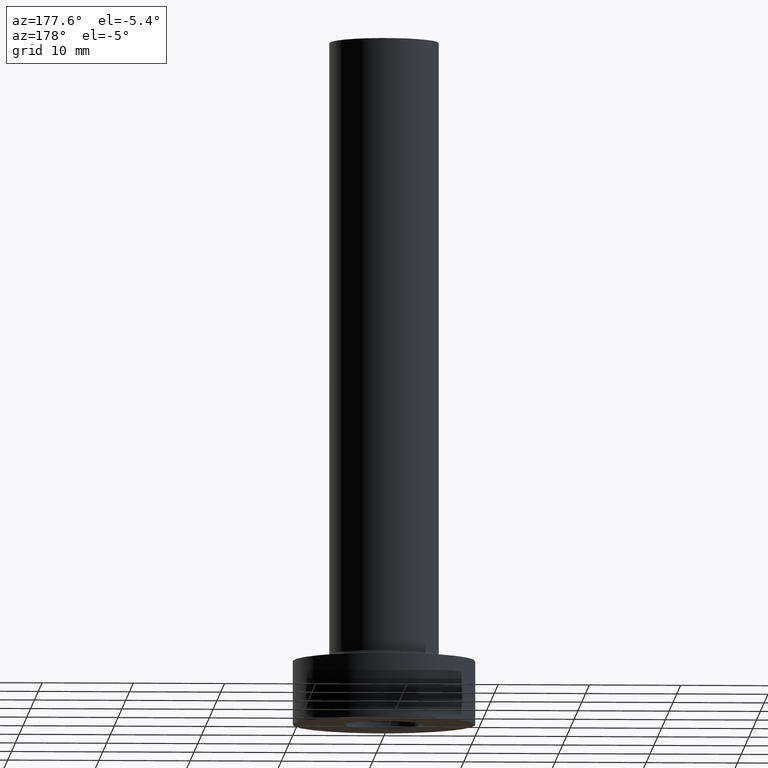
[diagram: clean part render]
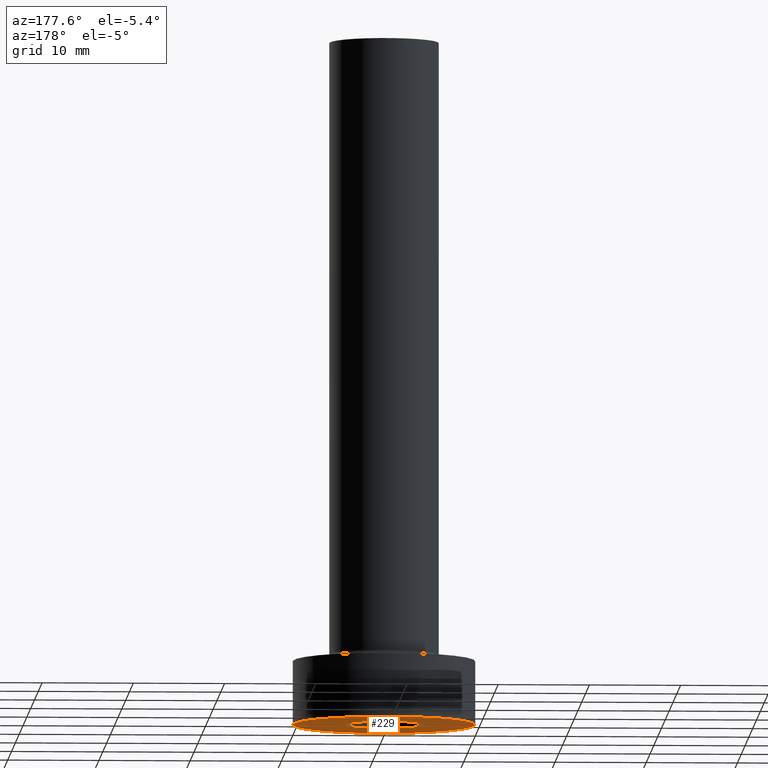
[diagram: same view with one face highlighted and labeled with its STEP entity id]
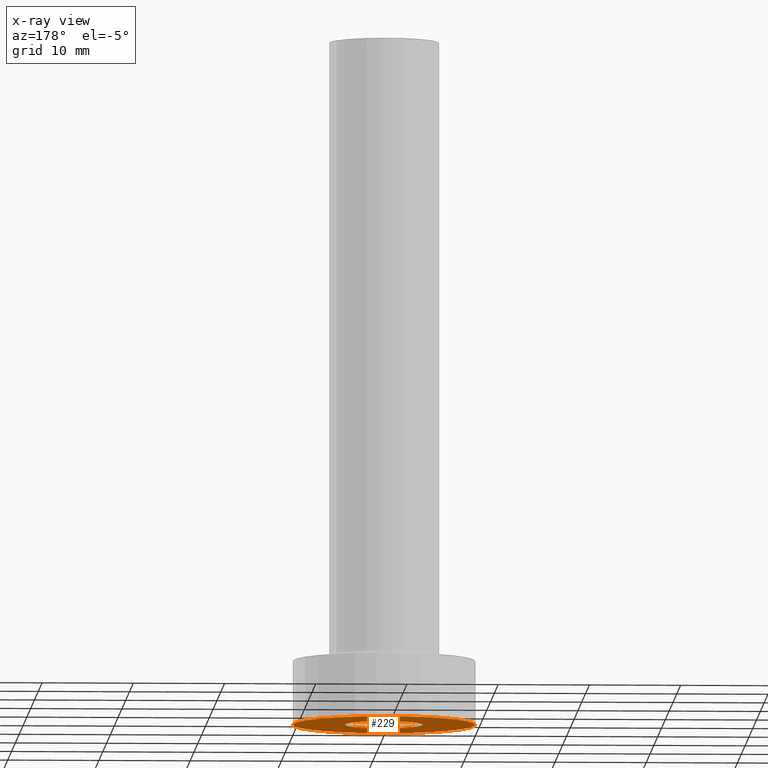
[diagram: x-ray of the same camera — body ghosted, the highlighted face saturated]
A machine part, auxiliary view. The second image highlights one B-rep face of the part: STEP entity #229.
The next image is the same camera in x-ray: the body ghosted, the highlighted face saturated — about 0% of this face is hidden behind the body in this view.
In plain terms, the highlighted planar face has unit normal (0, 0, 1).
Its self-contained STEP definition (entity closure, byte-faithful):
#9 = CIRCLE ( 'NONE', #89, 4.250000000000000000 ) ;
#27 = CARTESIAN_POINT ( 'NONE',  ( 4.250000000000000000, 5.204748896376249713E-16, 0.000000000000000000 ) ) ;
#37 = DIRECTION ( 'NONE',  ( -0.000000000000000000, -0.000000000000000000, -1.000000000000000000 ) ) ;
#39 = EDGE_CURVE ( 'NONE', #245, #116, #434, .T. ) ;
#54 = DIRECTION ( 'NONE',  ( 0.000000000000000000, 0.000000000000000000, 1.000000000000000000 ) ) ;
#62 = DIRECTION ( 'NONE',  ( -0.000000000000000000, -0.000000000000000000, -1.000000000000000000 ) ) ;
#69 = CARTESIAN_POINT ( 'NONE',  ( 0.000000000000000000, 0.000000000000000000, 0.000000000000000000 ) ) ;
#70 = ORIENTED_EDGE ( 'NONE', *, *, #233, .F. ) ;
#89 = AXIS2_PLACEMENT_3D ( 'NONE', #69, #62, #151 ) ;
#94 = AXIS2_PLACEMENT_3D ( 'NONE', #352, #37, #145 ) ;
#95 = CARTESIAN_POINT ( 'NONE',  ( 0.000000000000000000, 0.000000000000000000, 0.000000000000000000 ) ) ;
#99 = CARTESIAN_POINT ( 'NONE',  ( 0.000000000000000000, 0.000000000000000000, 0.000000000000000000 ) ) ;
#111 = AXIS2_PLACEMENT_3D ( 'NONE', #95, #54, #236 ) ;
#116 = VERTEX_POINT ( 'NONE', #161 ) ;
#132 = VERTEX_POINT ( 'NONE', #339 ) ;
#145 = DIRECTION ( 'NONE',  ( 1.000000000000000000, 0.000000000000000000, 0.000000000000000000 ) ) ;
#151 = DIRECTION ( 'NONE',  ( 1.000000000000000000, 0.000000000000000000, 0.000000000000000000 ) ) ;
#161 = CARTESIAN_POINT ( 'NONE',  ( -4.250000000000000000, 0.000000000000000000, 0.000000000000000000 ) ) ;
#173 = FACE_OUTER_BOUND ( 'NONE', #454, .T. ) ;
#196 = CARTESIAN_POINT ( 'NONE',  ( 0.000000000000000000, 0.000000000000000000, 0.000000000000000000 ) ) ;
#201 = EDGE_CURVE ( 'NONE', #369, #132, #246, .T. ) ;
#203 = AXIS2_PLACEMENT_3D ( 'NONE', #99, #210, #445 ) ;
#210 = DIRECTION ( 'NONE',  ( 0.000000000000000000, 0.000000000000000000, 1.000000000000000000 ) ) ;
#229 = ADVANCED_FACE ( 'NONE', ( #450, #173 ), #304, .F. ) ;
#233 = EDGE_CURVE ( 'NONE', #132, #369, #254, .T. ) ;
#236 = DIRECTION ( 'NONE',  ( 1.000000000000000000, 0.000000000000000000, 0.000000000000000000 ) ) ;
#245 = VERTEX_POINT ( 'NONE', #27 ) ;
#246 = CIRCLE ( 'NONE', #337, 10.00000000000000000 ) ;
#254 = CIRCLE ( 'NONE', #111, 10.00000000000000000 ) ;
#260 = DIRECTION ( 'NONE',  ( 1.000000000000000000, 0.000000000000000000, 0.000000000000000000 ) ) ;
#304 = PLANE ( 'NONE',  #203 ) ;
#316 = ORIENTED_EDGE ( 'NONE', *, *, #327, .F. ) ;
#327 = EDGE_CURVE ( 'NONE', #116, #245, #9, .T. ) ;
#330 = DIRECTION ( 'NONE',  ( 0.000000000000000000, 0.000000000000000000, 1.000000000000000000 ) ) ;
#337 = AXIS2_PLACEMENT_3D ( 'NONE', #196, #330, #260 ) ;
#339 = CARTESIAN_POINT ( 'NONE',  ( 10.00000000000000000, 1.224646799147353256E-15, 0.000000000000000000 ) ) ;
#352 = CARTESIAN_POINT ( 'NONE',  ( 0.000000000000000000, 0.000000000000000000, 0.000000000000000000 ) ) ;
#369 = VERTEX_POINT ( 'NONE', #378 ) ;
#378 = CARTESIAN_POINT ( 'NONE',  ( -10.00000000000000000, 0.000000000000000000, 0.000000000000000000 ) ) ;
#408 = ORIENTED_EDGE ( 'NONE', *, *, #201, .F. ) ;
#414 = EDGE_LOOP ( 'NONE', ( #316, #438 ) ) ;
#434 = CIRCLE ( 'NONE', #94, 4.250000000000000000 ) ;
#438 = ORIENTED_EDGE ( 'NONE', *, *, #39, .F. ) ;
#445 = DIRECTION ( 'NONE',  ( 1.000000000000000000, 0.000000000000000000, -0.000000000000000000 ) ) ;
#450 = FACE_BOUND ( 'NONE', #414, .T. ) ;
#454 = EDGE_LOOP ( 'NONE', ( #408, #70 ) ) ;